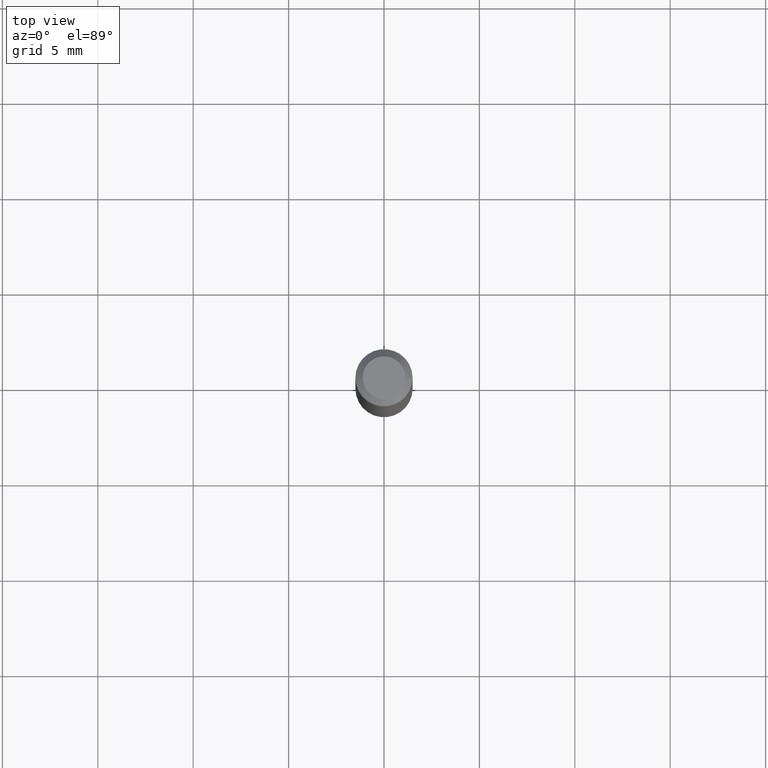
[diagram: clean part render]
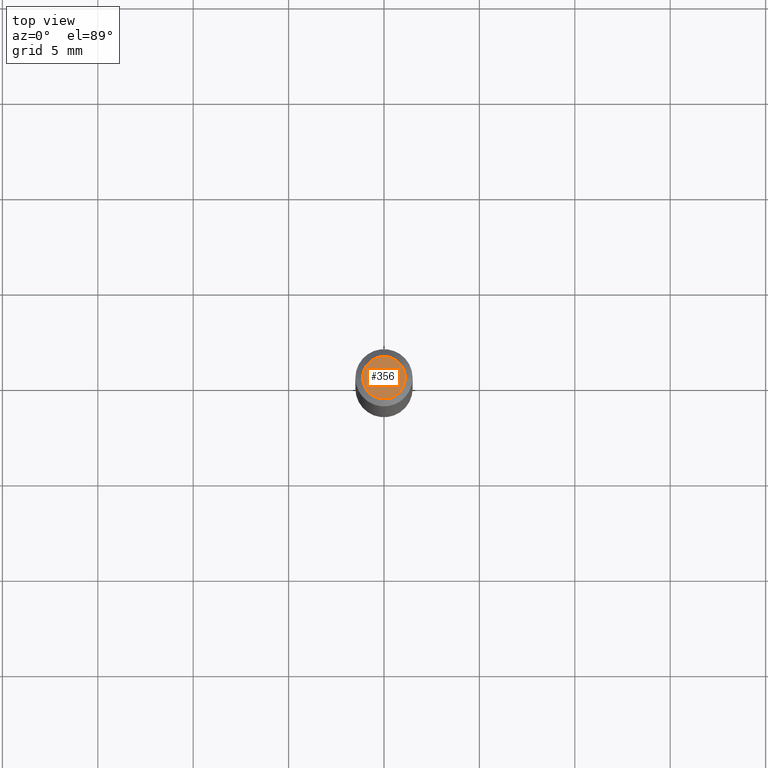
[diagram: same view with one face highlighted and labeled with its STEP entity id]
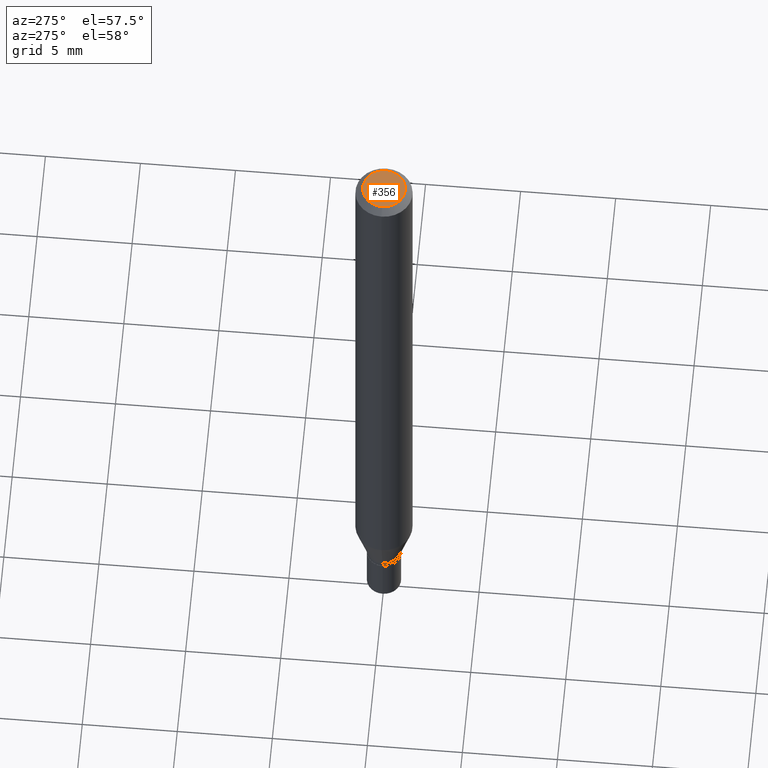
[diagram: same view with one face highlighted and labeled with its STEP entity id]
A machine part, top view. The second image highlights one B-rep face of the part: STEP entity #356.
A second angle (auxiliary view) of the same face is appended — the face is thin or edge-on in the first view.
In plain terms, the highlighted planar face has unit normal (0, -0, -1).
Its self-contained STEP definition (entity closure, byte-faithful):
#14 = EDGE_CURVE ( 'NONE', #34, #426, #174, .T. ) ;
#20 = CARTESIAN_POINT ( 'NONE',  ( -0.04404999999999999888, 3.337856159934036604E-16, 1.187331483132455906E-16 ) ) ;
#27 = DIRECTION ( 'NONE',  ( -1.000000000000000000, 6.982962677686265922E-15, -4.876176775795935793E-29 ) ) ;
#34 = VERTEX_POINT ( 'NONE', #20 ) ;
#108 = AXIS2_PLACEMENT_3D ( 'NONE', #202, #281, #349 ) ;
#122 = DIRECTION ( 'NONE',  ( -2.445468806185136597E-29, 3.491481338843145583E-15, 1.000000000000000000 ) ) ;
#159 = PLANE ( 'NONE',  #182 ) ;
#166 = DIRECTION ( 'NONE',  ( 2.438088387897960049E-29, -3.491481338843145188E-15, -1.000000000000000000 ) ) ;
#172 = EDGE_LOOP ( 'NONE', ( #239, #282 ) ) ;
#173 = EDGE_CURVE ( 'NONE', #426, #34, #241, .T. ) ;
#174 = CIRCLE ( 'NONE', #462, 0.04404999999999999888 ) ;
#182 = AXIS2_PLACEMENT_3D ( 'NONE', #445, #166, #27 ) ;
#202 = CARTESIAN_POINT ( 'NONE',  ( -2.903582104602009454E-45, 4.145545716378002760E-31, 1.187331483132478339E-16 ) ) ;
#220 = CARTESIAN_POINT ( 'NONE',  ( -2.903582104602009454E-45, 4.145545716378002760E-31, 1.187331483132478339E-16 ) ) ;
#239 = ORIENTED_EDGE ( 'NONE', *, *, #14, .T. ) ;
#241 = CIRCLE ( 'NONE', #108, 0.04404999999999999888 ) ;
#281 = DIRECTION ( 'NONE',  ( -2.445468806185136597E-29, 3.491481338843145583E-15, 1.000000000000000000 ) ) ;
#282 = ORIENTED_EDGE ( 'NONE', *, *, #173, .T. ) ;
#300 = FACE_OUTER_BOUND ( 'NONE', #172, .T. ) ;
#346 = CARTESIAN_POINT ( 'NONE',  ( 0.04404999999999999888, -3.798447818264458600E-16, 1.187331483132502252E-16 ) ) ;
#349 = DIRECTION ( 'NONE',  ( 1.000000000000000000, -6.982962677686265922E-15, 4.888540261209747396E-29 ) ) ;
#356 = ADVANCED_FACE ( 'NONE', ( #300 ), #159, .F. ) ;
#408 = DIRECTION ( 'NONE',  ( 1.000000000000000000, -6.982962677686265922E-15, 4.888540261209747396E-29 ) ) ;
#426 = VERTEX_POINT ( 'NONE', #346 ) ;
#445 = CARTESIAN_POINT ( 'NONE',  ( 3.075995059520799729E-16, 0.04404999999999999888, -9.443317881941664879E-17 ) ) ;
#462 = AXIS2_PLACEMENT_3D ( 'NONE', #220, #122, #408 ) ;